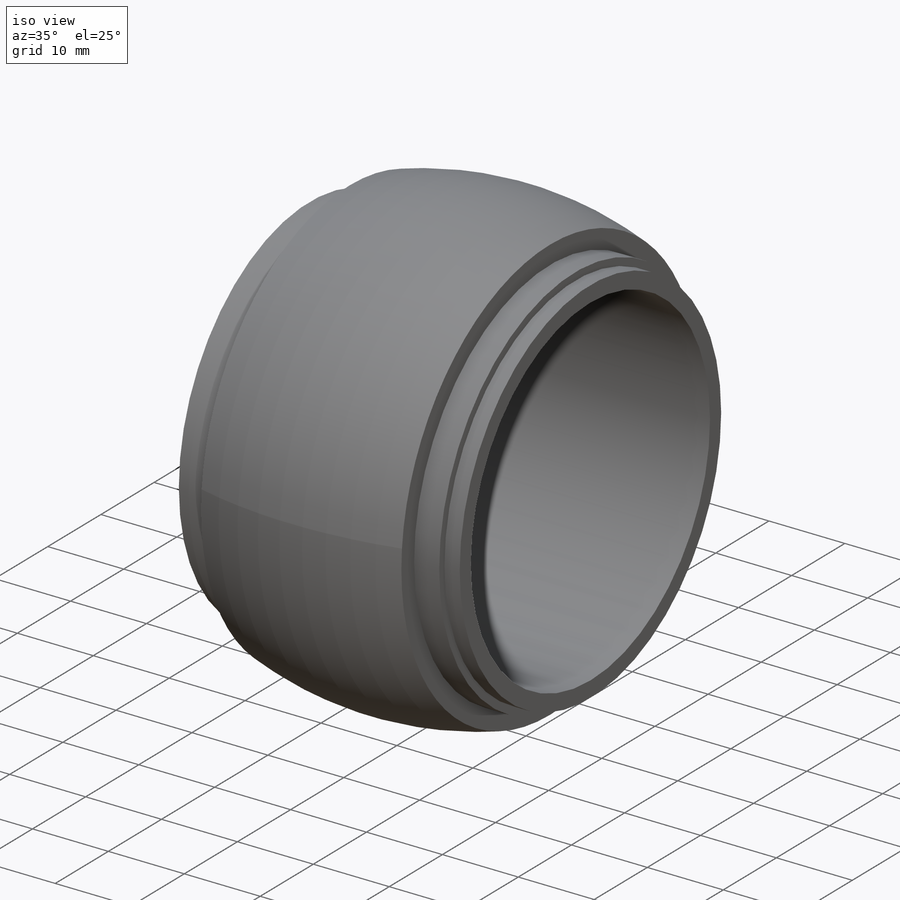
[diagram: iso view]
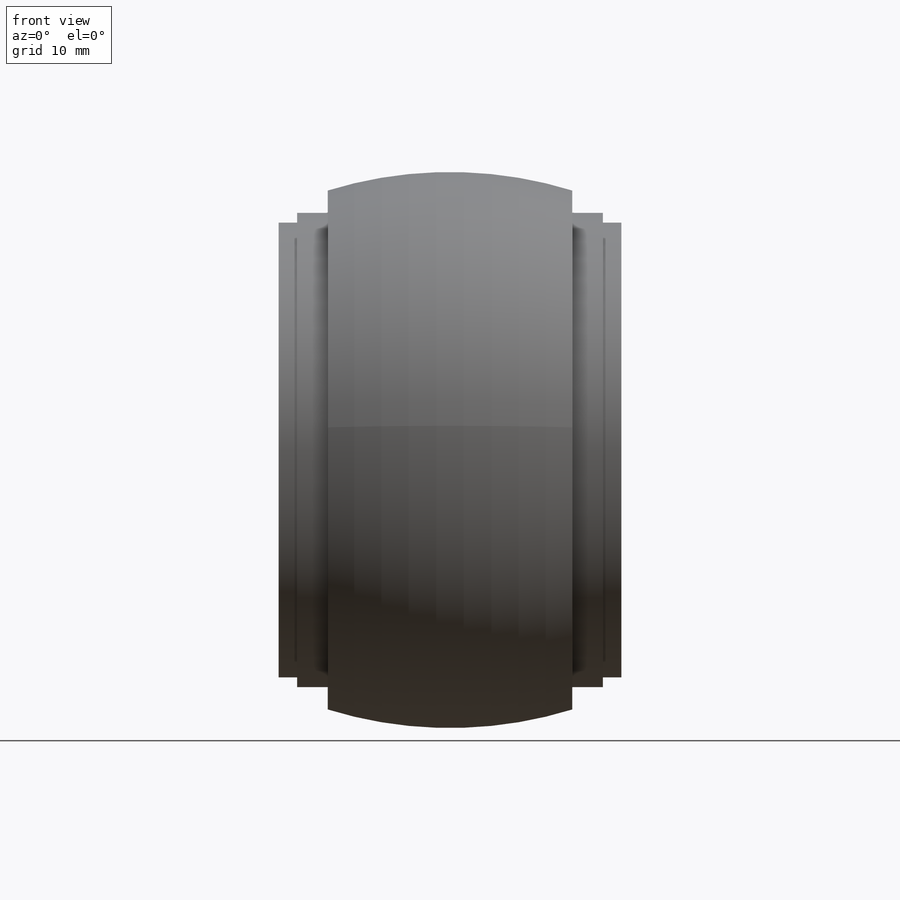
[diagram: front view]
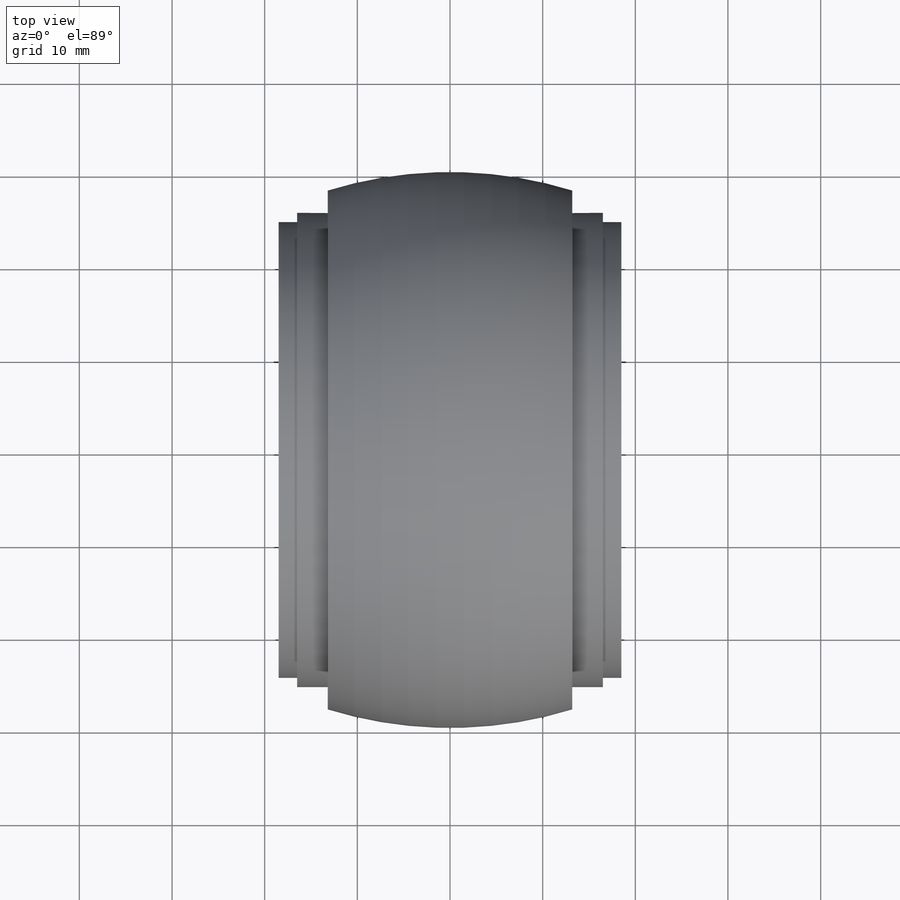
[diagram: top view]
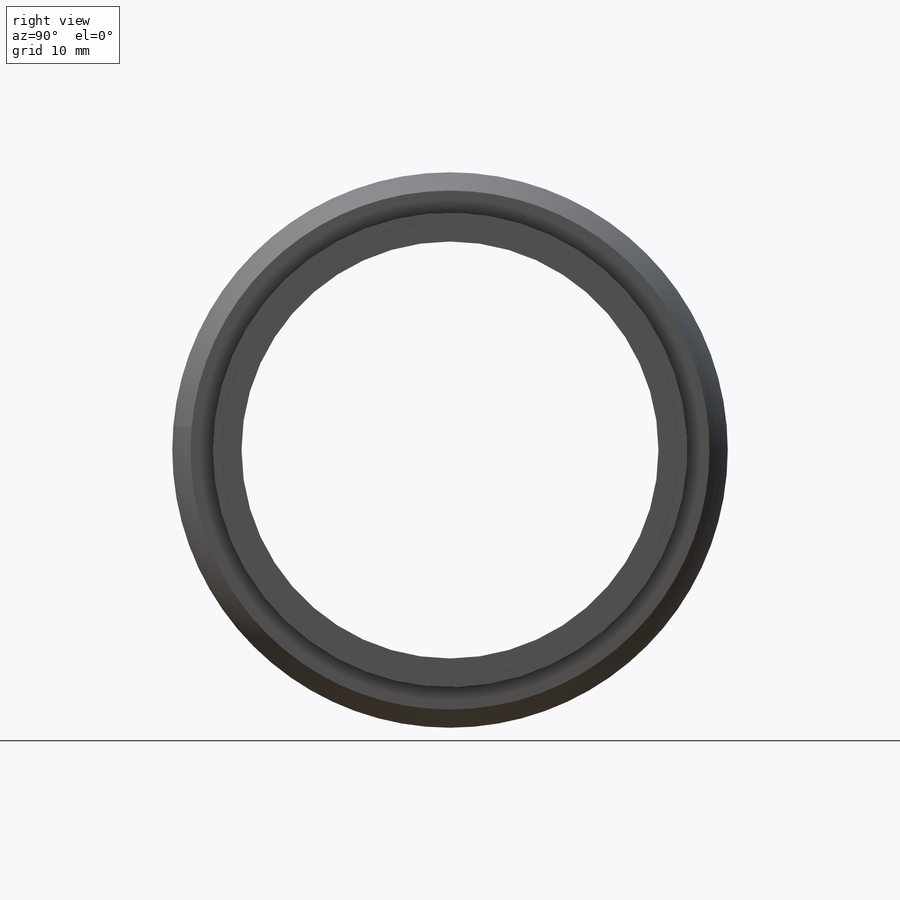
[diagram: right view]
SOLIDWORKS PART (.sldprt)
format: sldprt  version: not decoded by parser v0  size: 1,114,112 bytes
history: native  units: mm
features: sketch x5, plane x3, cut_revolve x2, cut_extrude x2, chamfer x2, material x1, extrude x1 (+9 scaffold rows collapsed)
feature tree (25):
  scaffold x9  (default folders/planes/origin — collapsed)
  material  "PMMA"
  plane  "Ebene vorne"
  plane  "Ebene oben"
  plane  "Ebene rechts"
  sketch  "Skizze1"  dims[D1=70.0mm D2=45.0mm]
  extrude  "Aufsatz-Linear austragen1"  Depth=37mm
  sketch  "Skizze4"  dims[D1=2.0mm D2=1.0mm]
  cut_revolve  "Schnitt-Rotation1"  Angle=360deg
  sketch  "Skizze3"
  cut_extrude  "Schnitt-Linear austragen1"  [1 undecoded]
  cut_revolve  "Schnitt-Rotation2"  [1 undecoded]
  sketch  "Skizze4<4>"  dims[D1=360.0deg]
  sketch  "Skizze5"  dims[D1=4.0mm D2=28.5mm]
  cut_extrude  "Schnitt-Linear austragen2"  [1 undecoded]
  chamfer  "Fase2"  Distance=0.05mm
  chamfer  "Fase3"  Distance=1mm
decode coverage: 8 of 12 modeling features carry decoded parameters
note: 3 parameter values undecoded
summary: no parameter record found for 3 features
note: suppression state not decoded; provenance and decode notes live in map.json
